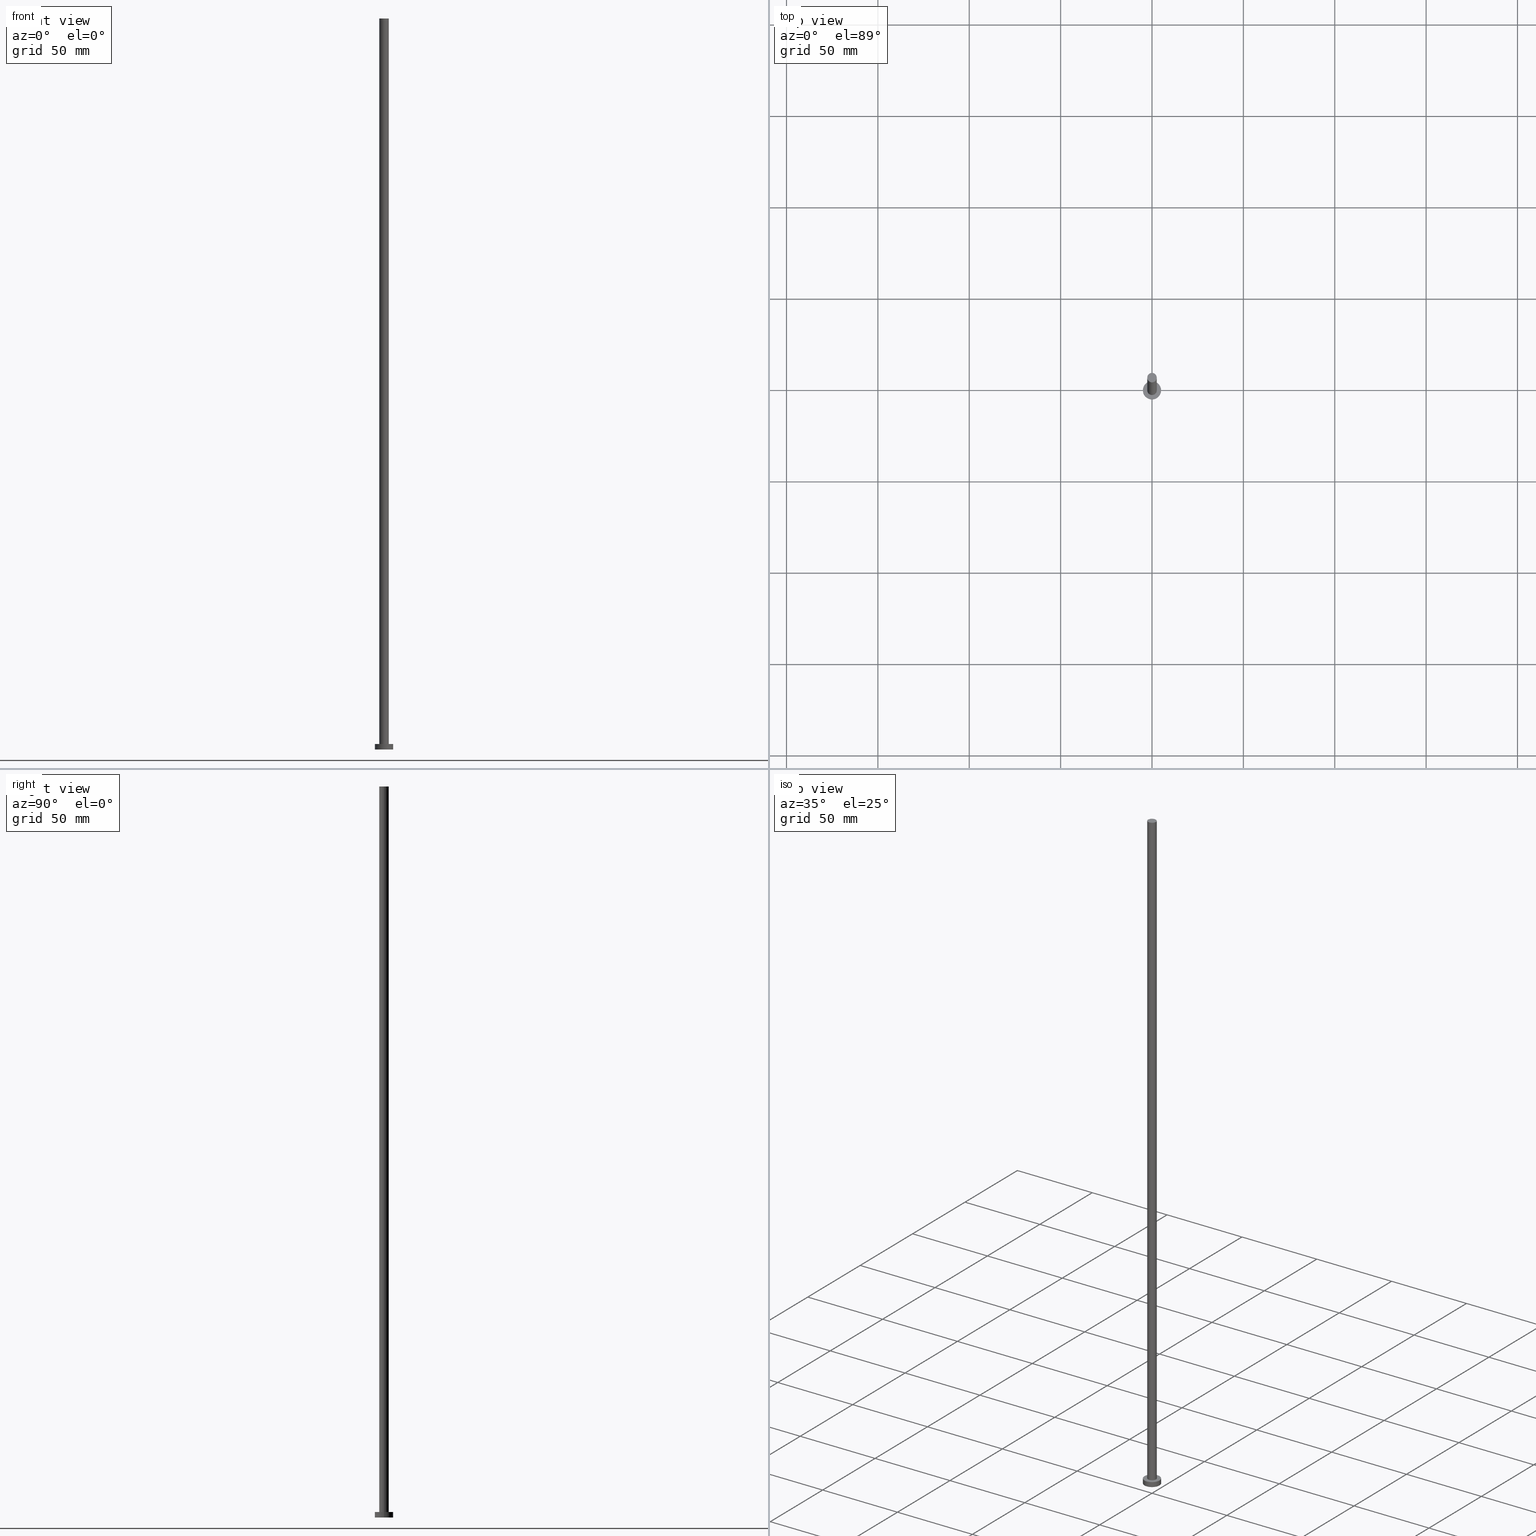
[diagram: canonical four-view strip — front | top / right | iso, engineering-drawing reading convention]
A machine part, canonical four-view strip (front | top / right | iso — engineering-drawing reading convention). The complete STEP part file that produces these views, byte-faithful:
ISO-10303-21;
HEADER;
FILE_DESCRIPTION (( 'STEP AP203' ),
    '1' );
FILE_NAME ('f878.STEP',
    '2023-02-13T13:23:42',
    ( '' ),
    ( '' ),
    'SwSTEP 2.0',
    'SolidWorks 2019',
    '' );
FILE_SCHEMA (( 'CONFIG_CONTROL_DESIGN' ));
ENDSEC;

DATA;
#1 = DIRECTION ( 'NONE',  ( 1.000000000000000000, 0.000000000000000000, 0.000000000000000000 ) ) ;
#2 = CIRCLE ( 'NONE', #104, 5.000000000000000000 ) ;
#3 = DIRECTION ( 'NONE',  ( 1.000000000000000000, 0.000000000000000000, 0.000000000000000000 ) ) ;
#4 = DIRECTION ( 'NONE',  ( 0.000000000000000000, 0.000000000000000000, 1.000000000000000000 ) ) ;
#5 = PERSON_AND_ORGANIZATION_ROLE ( 'classification_officer' ) ;
#6 = EDGE_CURVE ( 'NONE', #79, #97, #155, .T. ) ;
#7 = PRODUCT_DEFINITION ( 'NEZN�M�', '', #168, #51 ) ;
#8 = DATE_TIME_ROLE ( 'creation_date' ) ;
#9 = PRODUCT ( 'f878', 'f878', '', ( #131 ) ) ;
#10 = PERSON_AND_ORGANIZATION ( #80, #14 ) ;
#11 = DATE_AND_TIME ( #173, #77 ) ;
#12 = DIRECTION ( 'NONE',  ( 0.000000000000000000, 0.000000000000000000, 1.000000000000000000 ) ) ;
#13 = APPROVAL ( #139, 'NEUR�EN�' ) ;
#14 = ORGANIZATION ( 'NEUR�EN�', 'NEUR�EN�', '' ) ;
#15 = ORIENTED_EDGE ( 'NONE', *, *, #25, .T. ) ;
#16 = ORIENTED_EDGE ( 'NONE', *, *, #46, .F. ) ;
#17 = ORIENTED_EDGE ( 'NONE', *, *, #207, .T. ) ;
#18 = DIRECTION ( 'NONE',  ( -0.000000000000000000, -0.000000000000000000, -1.000000000000000000 ) ) ;
#19 = PLANE ( 'NONE',  #41 ) ;
#20 = CARTESIAN_POINT ( 'NONE',  ( 2.600000000000000089, 3.184081677783118191E-16, 400.0000000000000000 ) ) ;
#21 = DIRECTION ( 'NONE',  ( -0.000000000000000000, -0.000000000000000000, -1.000000000000000000 ) ) ;
#22 = AXIS2_PLACEMENT_3D ( 'NONE', #175, #21, #156 ) ;
#23 = DIRECTION ( 'NONE',  ( -0.000000000000000000, -0.000000000000000000, -1.000000000000000000 ) ) ;
#24 = PERSON_AND_ORGANIZATION_ROLE ( 'design_supplier' ) ;
#25 = EDGE_CURVE ( 'NONE', #208, #38, #251, .T. ) ;
#26 = APPROVAL_STATUS ( 'not_yet_approved' ) ;
#27 = LOCAL_TIME ( 14, 23, 42.00000000000000000, #73 ) ;
#28 = UNCERTAINTY_MEASURE_WITH_UNIT (LENGTH_MEASURE( 1.000000000000000082E-05 ), #29, 'distance_accuracy_value', 'NONE');
#29 =( LENGTH_UNIT ( ) NAMED_UNIT ( * ) SI_UNIT ( .MILLI., .METRE. ) );
#30 = APPROVAL_DATE_TIME ( #90, #109 ) ;
#31 = AXIS2_PLACEMENT_3D ( 'NONE', #102, #84, #233 ) ;
#32 = CALENDAR_DATE ( 2023, 13, 2 ) ;
#33 = CARTESIAN_POINT ( 'NONE',  ( 0.000000000000000000, 0.000000000000000000, 400.0000000000000000 ) ) ;
#34 = CC_DESIGN_PERSON_AND_ORGANIZATION_ASSIGNMENT ( #200, #24, ( #168 ) ) ;
#35 = CIRCLE ( 'NONE', #72, 5.000000000000000000 ) ;
#36 = EDGE_LOOP ( 'NONE', ( #210, #193 ) ) ;
#37 = DATE_AND_TIME ( #32, #217 ) ;
#38 = VERTEX_POINT ( 'NONE', #115 ) ;
#39 = DIRECTION ( 'NONE',  ( 1.000000000000000000, 0.000000000000000000, 0.000000000000000000 ) ) ;
#40 = AXIS2_PLACEMENT_3D ( 'NONE', #48, #241, #201 ) ;
#41 = AXIS2_PLACEMENT_3D ( 'NONE', #158, #4, #106 ) ;
#42 = DIRECTION ( 'NONE',  ( 0.000000000000000000, 0.000000000000000000, 1.000000000000000000 ) ) ;
#43 = DIRECTION ( 'NONE',  ( 1.000000000000000000, 0.000000000000000000, 0.000000000000000000 ) ) ;
#44 = LINE ( 'NONE', #125, #60 ) ;
#45 = DIRECTION ( 'NONE',  ( -1.000000000000000000, 0.000000000000000000, 0.000000000000000000 ) ) ;
#46 = EDGE_CURVE ( 'NONE', #38, #208, #178, .T. ) ;
#47 = CALENDAR_DATE ( 2023, 13, 2 ) ;
#48 = CARTESIAN_POINT ( 'NONE',  ( 0.000000000000000000, 0.000000000000000000, 3.000000000000000000 ) ) ;
#49 = CIRCLE ( 'NONE', #132, 2.600000000000000089 ) ;
#50 = CARTESIAN_POINT ( 'NONE',  ( 0.000000000000000000, 0.000000000000000000, 0.000000000000000000 ) ) ;
#51 = DESIGN_CONTEXT ( 'detailed design', #202, 'design' ) ;
#52 = APPLICATION_PROTOCOL_DEFINITION ( 'international standard', 'config_control_design', 1994, #202 ) ;
#53 = DATE_TIME_ROLE ( 'classification_date' ) ;
#54 = CIRCLE ( 'NONE', #40, 2.600000000000000089 ) ;
#55 = CARTESIAN_POINT ( 'NONE',  ( 0.000000000000000000, 0.000000000000000000, 3.000000000000000000 ) ) ;
#56 = CC_DESIGN_PERSON_AND_ORGANIZATION_ASSIGNMENT ( #93, #151, ( #9 ) ) ;
#57 = VERTEX_POINT ( 'NONE', #123 ) ;
#58 = APPROVAL_ROLE ( '' ) ;
#59 = ORIENTED_EDGE ( 'NONE', *, *, #248, .F. ) ;
#60 = VECTOR ( 'NONE', #23, 1000.000000000000000 ) ;
#61 = PERSON_AND_ORGANIZATION ( #80, #14 ) ;
#62 = DIRECTION ( 'NONE',  ( 0.000000000000000000, 0.000000000000000000, 1.000000000000000000 ) ) ;
#63 = ORIENTED_EDGE ( 'NONE', *, *, #203, .T. ) ;
#64 = CARTESIAN_POINT ( 'NONE',  ( 5.000000000000000000, 6.123233995736766282E-16, 3.000000000000000000 ) ) ;
#65 = CARTESIAN_POINT ( 'NONE',  ( -5.000000000000000000, 0.000000000000000000, 3.000000000000000000 ) ) ;
#66 = CYLINDRICAL_SURFACE ( 'NONE', #120, 2.600000000000000089 ) ;
#67 = PLANE ( 'NONE',  #226 ) ;
#68 = CARTESIAN_POINT ( 'NONE',  ( 0.000000000000000000, 0.000000000000000000, 0.000000000000000000 ) ) ;
#69 = COORDINATED_UNIVERSAL_TIME_OFFSET ( 1, 0, .AHEAD. ) ;
#70 = FACE_OUTER_BOUND ( 'NONE', #113, .T. ) ;
#71 = ADVANCED_FACE ( 'NONE', ( #143 ), #67, .F. ) ;
#72 = AXIS2_PLACEMENT_3D ( 'NONE', #68, #146, #195 ) ;
#73 = COORDINATED_UNIVERSAL_TIME_OFFSET ( 1, 0, .AHEAD. ) ;
#74 = ORIENTED_EDGE ( 'NONE', *, *, #116, .F. ) ;
#75 = CC_DESIGN_APPROVAL ( #109, ( #168 ) ) ;
#76 =( GEOMETRIC_REPRESENTATION_CONTEXT ( 3 ) GLOBAL_UNCERTAINTY_ASSIGNED_CONTEXT ( ( #28 ) ) GLOBAL_UNIT_ASSIGNED_CONTEXT ( ( #29, #184, #163 ) ) REPRESENTATION_CONTEXT ( 'NONE', 'WORKASPACE' ) );
#77 = LOCAL_TIME ( 14, 23, 42.00000000000000000, #69 ) ;
#78 = EDGE_LOOP ( 'NONE', ( #247, #172, #171, #191 ) ) ;
#79 = VERTEX_POINT ( 'NONE', #85 ) ;
#80 = PERSON ( 'NEUR�EN�', 'NEUR�EN�', 'NEUR�EN�', ('NEUR�EN�'), ('NEUR�EN�'), ('NEUR�EN�') ) ;
#81 = ORIENTED_EDGE ( 'NONE', *, *, #189, .F. ) ;
#82 = FACE_OUTER_BOUND ( 'NONE', #209, .T. ) ;
#83 = EDGE_CURVE ( 'NONE', #249, #94, #49, .T. ) ;
#84 = DIRECTION ( 'NONE',  ( -0.000000000000000000, -0.000000000000000000, -1.000000000000000000 ) ) ;
#85 = CARTESIAN_POINT ( 'NONE',  ( -2.600000000000000089, 0.000000000000000000, 400.0000000000000000 ) ) ;
#86 = LINE ( 'NONE', #20, #199 ) ;
#87 = CC_DESIGN_SECURITY_CLASSIFICATION ( #130, ( #168 ) ) ;
#88 = APPROVAL_DATE_TIME ( #244, #147 ) ;
#89 = VECTOR ( 'NONE', #234, 1000.000000000000000 ) ;
#90 = DATE_AND_TIME ( #223, #170 ) ;
#91 = PERSON_AND_ORGANIZATION ( #80, #14 ) ;
#92 = AXIS2_PLACEMENT_3D ( 'NONE', #227, #240, #243 ) ;
#93 = PERSON_AND_ORGANIZATION ( #80, #14 ) ;
#94 = VERTEX_POINT ( 'NONE', #198 ) ;
#95 = ORIENTED_EDGE ( 'NONE', *, *, #232, .T. ) ;
#96 = ORIENTED_EDGE ( 'NONE', *, *, #207, .F. ) ;
#97 = VERTEX_POINT ( 'NONE', #121 ) ;
#98 = ORIENTED_EDGE ( 'NONE', *, *, #46, .T. ) ;
#99 = DIRECTION ( 'NONE',  ( -1.000000000000000000, 0.000000000000000000, 0.000000000000000000 ) ) ;
#100 = CC_DESIGN_PERSON_AND_ORGANIZATION_ASSIGNMENT ( #91, #205, ( #7 ) ) ;
#101 = ADVANCED_FACE ( 'NONE', ( #221, #255 ), #19, .T. ) ;
#102 = CARTESIAN_POINT ( 'NONE',  ( 0.000000000000000000, 0.000000000000000000, 400.0000000000000000 ) ) ;
#103 = DIRECTION ( 'NONE',  ( 0.000000000000000000, 0.000000000000000000, 1.000000000000000000 ) ) ;
#104 = AXIS2_PLACEMENT_3D ( 'NONE', #176, #42, #3 ) ;
#105 = DIRECTION ( 'NONE',  ( -0.000000000000000000, -0.000000000000000000, -1.000000000000000000 ) ) ;
#106 = DIRECTION ( 'NONE',  ( 1.000000000000000000, 0.000000000000000000, -0.000000000000000000 ) ) ;
#107 = SECURITY_CLASSIFICATION_LEVEL ( 'unclassified' ) ;
#108 = CC_DESIGN_APPROVAL ( #13, ( #130 ) ) ;
#109 = APPROVAL ( #26, 'NEUR�EN�' ) ;
#110 = APPROVAL_STATUS ( 'not_yet_approved' ) ;
#111 = DIRECTION ( 'NONE',  ( 1.000000000000000000, 0.000000000000000000, 0.000000000000000000 ) ) ;
#112 = CARTESIAN_POINT ( 'NONE',  ( 2.600000000000000089, 3.184081677783118191E-16, 3.000000000000000000 ) ) ;
#113 = EDGE_LOOP ( 'NONE', ( #138, #169 ) ) ;
#114 = SHAPE_DEFINITION_REPRESENTATION ( #124, #212 ) ;
#115 = CARTESIAN_POINT ( 'NONE',  ( 5.000000000000000000, 6.123233995736766282E-16, 3.000000000000000000 ) ) ;
#116 = EDGE_CURVE ( 'NONE', #208, #57, #194, .T. ) ;
#117 = DIRECTION ( 'NONE',  ( 0.000000000000000000, 0.000000000000000000, 1.000000000000000000 ) ) ;
#118 = LINE ( 'NONE', #64, #141 ) ;
#119 = ADVANCED_FACE ( 'NONE', ( #140 ), #197, .T. ) ;
#120 = AXIS2_PLACEMENT_3D ( 'NONE', #220, #105, #99 ) ;
#121 = CARTESIAN_POINT ( 'NONE',  ( 2.600000000000000089, 3.184081677783118191E-16, 400.0000000000000000 ) ) ;
#122 = DIRECTION ( 'NONE',  ( -0.000000000000000000, -0.000000000000000000, -1.000000000000000000 ) ) ;
#123 = CARTESIAN_POINT ( 'NONE',  ( -5.000000000000000000, 0.000000000000000000, 0.000000000000000000 ) ) ;
#124 = PRODUCT_DEFINITION_SHAPE ( 'NONE', 'NONE',  #7 ) ;
#125 = CARTESIAN_POINT ( 'NONE',  ( -2.600000000000000089, 0.000000000000000000, 400.0000000000000000 ) ) ;
#126 = PERSON_AND_ORGANIZATION_ROLE ( 'creator' ) ;
#127 = CC_DESIGN_PERSON_AND_ORGANIZATION_ASSIGNMENT ( #222, #126, ( #168 ) ) ;
#128 = COORDINATED_UNIVERSAL_TIME_OFFSET ( 1, 0, .AHEAD. ) ;
#129 = APPROVAL_PERSON_ORGANIZATION ( #164, #109, #149 ) ;
#130 = SECURITY_CLASSIFICATION ( '', '', #107 ) ;
#131 = MECHANICAL_CONTEXT ( 'NONE', #219, 'mechanical' ) ;
#132 = AXIS2_PLACEMENT_3D ( 'NONE', #157, #218, #39 ) ;
#133 = MANIFOLD_SOLID_BREP ( 'P�idat vysunut�m3', #242 ) ;
#134 = VERTEX_POINT ( 'NONE', #236 ) ;
#135 = ORIENTED_EDGE ( 'NONE', *, *, #239, .T. ) ;
#136 = ADVANCED_FACE ( 'NONE', ( #82 ), #214, .T. ) ;
#137 = APPROVAL_DATE_TIME ( #37, #13 ) ;
#138 = ORIENTED_EDGE ( 'NONE', *, *, #6, .T. ) ;
#139 = APPROVAL_STATUS ( 'not_yet_approved' ) ;
#140 = FACE_OUTER_BOUND ( 'NONE', #78, .T. ) ;
#141 = VECTOR ( 'NONE', #122, 1000.000000000000000 ) ;
#142 = CARTESIAN_POINT ( 'NONE',  ( -5.000000000000000000, 0.000000000000000000, 3.000000000000000000 ) ) ;
#143 = FACE_OUTER_BOUND ( 'NONE', #36, .T. ) ;
#144 = DIRECTION ( 'NONE',  ( 1.000000000000000000, 0.000000000000000000, -0.000000000000000000 ) ) ;
#145 = AXIS2_PLACEMENT_3D ( 'NONE', #159, #254, #43 ) ;
#146 = DIRECTION ( 'NONE',  ( 0.000000000000000000, 0.000000000000000000, 1.000000000000000000 ) ) ;
#147 = APPROVAL ( #110, 'NEUR�EN�' ) ;
#148 = ADVANCED_FACE ( 'NONE', ( #231 ), #66, .T. ) ;
#149 = APPROVAL_ROLE ( '' ) ;
#150 = CIRCLE ( 'NONE', #145, 2.600000000000000089 ) ;
#151 = PERSON_AND_ORGANIZATION_ROLE ( 'design_owner' ) ;
#152 = CC_DESIGN_DATE_AND_TIME_ASSIGNMENT ( #11, #53, ( #130 ) ) ;
#153 = ORIENTED_EDGE ( 'NONE', *, *, #6, .F. ) ;
#154 = ORIENTED_EDGE ( 'NONE', *, *, #83, .T. ) ;
#155 = CIRCLE ( 'NONE', #187, 2.600000000000000089 ) ;
#156 = DIRECTION ( 'NONE',  ( -1.000000000000000000, 0.000000000000000000, 0.000000000000000000 ) ) ;
#157 = CARTESIAN_POINT ( 'NONE',  ( 0.000000000000000000, 0.000000000000000000, 3.000000000000000000 ) ) ;
#158 = CARTESIAN_POINT ( 'NONE',  ( 0.000000000000000000, 0.000000000000000000, 3.000000000000000000 ) ) ;
#159 = CARTESIAN_POINT ( 'NONE',  ( 0.000000000000000000, 0.000000000000000000, 400.0000000000000000 ) ) ;
#160 = DIRECTION ( 'NONE',  ( -0.000000000000000000, -0.000000000000000000, -1.000000000000000000 ) ) ;
#161 = AXIS2_PLACEMENT_3D ( 'NONE', #235, #18, #45 ) ;
#162 = CALENDAR_DATE ( 2023, 13, 2 ) ;
#163 =( NAMED_UNIT ( * ) SI_UNIT ( $, .STERADIAN. ) SOLID_ANGLE_UNIT ( ) );
#164 = PERSON_AND_ORGANIZATION ( #80, #14 ) ;
#165 = DATE_AND_TIME ( #162, #27 ) ;
#166 = ORIENTED_EDGE ( 'NONE', *, *, #83, .F. ) ;
#167 = EDGE_CURVE ( 'NONE', #57, #134, #2, .T. ) ;
#168 = PRODUCT_DEFINITION_FORMATION_WITH_SPECIFIED_SOURCE ( 'LIBOVOLN�', '', #9, .NOT_KNOWN. ) ;
#169 = ORIENTED_EDGE ( 'NONE', *, *, #189, .T. ) ;
#170 = LOCAL_TIME ( 14, 23, 42.00000000000000000, #128 ) ;
#171 = ORIENTED_EDGE ( 'NONE', *, *, #116, .T. ) ;
#172 = ORIENTED_EDGE ( 'NONE', *, *, #25, .F. ) ;
#173 = CALENDAR_DATE ( 2023, 13, 2 ) ;
#174 = DIRECTION ( 'NONE',  ( 1.000000000000000000, 0.000000000000000000, 0.000000000000000000 ) ) ;
#175 = CARTESIAN_POINT ( 'NONE',  ( 0.000000000000000000, 0.000000000000000000, 3.000000000000000000 ) ) ;
#176 = CARTESIAN_POINT ( 'NONE',  ( 0.000000000000000000, 0.000000000000000000, 0.000000000000000000 ) ) ;
#177 = CARTESIAN_POINT ( 'NONE',  ( 0.000000000000000000, 0.000000000000000000, 0.000000000000000000 ) ) ;
#178 = CIRCLE ( 'NONE', #237, 5.000000000000000000 ) ;
#179 = CYLINDRICAL_SURFACE ( 'NONE', #31, 2.600000000000000089 ) ;
#180 = FACE_OUTER_BOUND ( 'NONE', #211, .T. ) ;
#181 = PERSON_AND_ORGANIZATION ( #80, #14 ) ;
#182 = APPROVAL_PERSON_ORGANIZATION ( #10, #147, #185 ) ;
#183 = AXIS2_PLACEMENT_3D ( 'NONE', #50, #204, #111 ) ;
#184 =( NAMED_UNIT ( * ) PLANE_ANGLE_UNIT ( ) SI_UNIT ( $, .RADIAN. ) );
#185 = APPROVAL_ROLE ( '' ) ;
#186 = APPLICATION_PROTOCOL_DEFINITION ( 'international standard', 'config_control_design', 1994, #219 ) ;
#187 = AXIS2_PLACEMENT_3D ( 'NONE', #33, #117, #252 ) ;
#188 = ADVANCED_FACE ( 'NONE', ( #180 ), #179, .T. ) ;
#189 = EDGE_CURVE ( 'NONE', #97, #79, #150, .T. ) ;
#190 = CARTESIAN_POINT ( 'NONE',  ( 0.000000000000000000, 0.000000000000000000, 3.000000000000000000 ) ) ;
#191 = ORIENTED_EDGE ( 'NONE', *, *, #167, .T. ) ;
#192 = APPROVAL_PERSON_ORGANIZATION ( #61, #13, #58 ) ;
#193 = ORIENTED_EDGE ( 'NONE', *, *, #232, .F. ) ;
#194 = LINE ( 'NONE', #142, #89 ) ;
#195 = DIRECTION ( 'NONE',  ( 1.000000000000000000, 0.000000000000000000, 0.000000000000000000 ) ) ;
#196 = CC_DESIGN_PERSON_AND_ORGANIZATION_ASSIGNMENT ( #181, #5, ( #130 ) ) ;
#197 = CYLINDRICAL_SURFACE ( 'NONE', #22, 5.000000000000000000 ) ;
#198 = CARTESIAN_POINT ( 'NONE',  ( -2.600000000000000089, 0.000000000000000000, 3.000000000000000000 ) ) ;
#199 = VECTOR ( 'NONE', #160, 1000.000000000000000 ) ;
#200 = PERSON_AND_ORGANIZATION ( #80, #14 ) ;
#201 = DIRECTION ( 'NONE',  ( 1.000000000000000000, 0.000000000000000000, 0.000000000000000000 ) ) ;
#202 = APPLICATION_CONTEXT ( 'configuration controlled 3d designs of mechanical parts and assemblies' ) ;
#203 = EDGE_CURVE ( 'NONE', #79, #94, #44, .T. ) ;
#204 = DIRECTION ( 'NONE',  ( 0.000000000000000000, 0.000000000000000000, 1.000000000000000000 ) ) ;
#205 = PERSON_AND_ORGANIZATION_ROLE ( 'creator' ) ;
#206 = AXIS2_PLACEMENT_3D ( 'NONE', #55, #62, #174 ) ;
#207 = EDGE_CURVE ( 'NONE', #97, #249, #86, .T. ) ;
#208 = VERTEX_POINT ( 'NONE', #65 ) ;
#209 = EDGE_LOOP ( 'NONE', ( #16, #135, #95, #74 ) ) ;
#210 = ORIENTED_EDGE ( 'NONE', *, *, #167, .F. ) ;
#211 = EDGE_LOOP ( 'NONE', ( #96, #153, #63, #213 ) ) ;
#212 = ADVANCED_BREP_SHAPE_REPRESENTATION ( 'f878', ( #133, #183 ), #76 ) ;
#213 = ORIENTED_EDGE ( 'NONE', *, *, #248, .T. ) ;
#214 = CYLINDRICAL_SURFACE ( 'NONE', #161, 5.000000000000000000 ) ;
#215 = CC_DESIGN_DATE_AND_TIME_ASSIGNMENT ( #165, #8, ( #7 ) ) ;
#216 = LOCAL_TIME ( 14, 23, 42.00000000000000000, #238 ) ;
#217 = LOCAL_TIME ( 14, 23, 42.00000000000000000, #250 ) ;
#218 = DIRECTION ( 'NONE',  ( 0.000000000000000000, 0.000000000000000000, 1.000000000000000000 ) ) ;
#219 = APPLICATION_CONTEXT ( 'configuration controlled 3d designs of mechanical parts and assemblies' ) ;
#220 = CARTESIAN_POINT ( 'NONE',  ( 0.000000000000000000, 0.000000000000000000, 400.0000000000000000 ) ) ;
#221 = FACE_BOUND ( 'NONE', #229, .T. ) ;
#222 = PERSON_AND_ORGANIZATION ( #80, #14 ) ;
#223 = CALENDAR_DATE ( 2023, 13, 2 ) ;
#224 = PLANE ( 'NONE',  #92 ) ;
#225 = PRODUCT_RELATED_PRODUCT_CATEGORY ( 'detail', '', ( #9 ) ) ;
#226 = AXIS2_PLACEMENT_3D ( 'NONE', #177, #103, #144 ) ;
#227 = CARTESIAN_POINT ( 'NONE',  ( 0.000000000000000000, 0.000000000000000000, 400.0000000000000000 ) ) ;
#228 = EDGE_LOOP ( 'NONE', ( #81, #17, #154, #230 ) ) ;
#229 = EDGE_LOOP ( 'NONE', ( #59, #166 ) ) ;
#230 = ORIENTED_EDGE ( 'NONE', *, *, #203, .F. ) ;
#231 = FACE_OUTER_BOUND ( 'NONE', #228, .T. ) ;
#232 = EDGE_CURVE ( 'NONE', #134, #57, #35, .T. ) ;
#233 = DIRECTION ( 'NONE',  ( -1.000000000000000000, 0.000000000000000000, 0.000000000000000000 ) ) ;
#234 = DIRECTION ( 'NONE',  ( -0.000000000000000000, -0.000000000000000000, -1.000000000000000000 ) ) ;
#235 = CARTESIAN_POINT ( 'NONE',  ( 0.000000000000000000, 0.000000000000000000, 3.000000000000000000 ) ) ;
#236 = CARTESIAN_POINT ( 'NONE',  ( 5.000000000000000000, 6.123233995736766282E-16, 0.000000000000000000 ) ) ;
#237 = AXIS2_PLACEMENT_3D ( 'NONE', #190, #12, #1 ) ;
#238 = COORDINATED_UNIVERSAL_TIME_OFFSET ( 1, 0, .AHEAD. ) ;
#239 = EDGE_CURVE ( 'NONE', #38, #134, #118, .T. ) ;
#240 = DIRECTION ( 'NONE',  ( 0.000000000000000000, 0.000000000000000000, 1.000000000000000000 ) ) ;
#241 = DIRECTION ( 'NONE',  ( 0.000000000000000000, 0.000000000000000000, 1.000000000000000000 ) ) ;
#242 = CLOSED_SHELL ( 'NONE', ( #148, #136, #119, #101, #71, #188, #253 ) ) ;
#243 = DIRECTION ( 'NONE',  ( 1.000000000000000000, 0.000000000000000000, -0.000000000000000000 ) ) ;
#244 = DATE_AND_TIME ( #47, #216 ) ;
#245 = EDGE_LOOP ( 'NONE', ( #15, #98 ) ) ;
#246 = CC_DESIGN_APPROVAL ( #147, ( #7 ) ) ;
#247 = ORIENTED_EDGE ( 'NONE', *, *, #239, .F. ) ;
#248 = EDGE_CURVE ( 'NONE', #94, #249, #54, .T. ) ;
#249 = VERTEX_POINT ( 'NONE', #112 ) ;
#250 = COORDINATED_UNIVERSAL_TIME_OFFSET ( 1, 0, .AHEAD. ) ;
#251 = CIRCLE ( 'NONE', #206, 5.000000000000000000 ) ;
#252 = DIRECTION ( 'NONE',  ( 1.000000000000000000, 0.000000000000000000, 0.000000000000000000 ) ) ;
#253 = ADVANCED_FACE ( 'NONE', ( #70 ), #224, .T. ) ;
#254 = DIRECTION ( 'NONE',  ( 0.000000000000000000, 0.000000000000000000, 1.000000000000000000 ) ) ;
#255 = FACE_OUTER_BOUND ( 'NONE', #245, .T. ) ;
ENDSEC;
END-ISO-10303-21;
